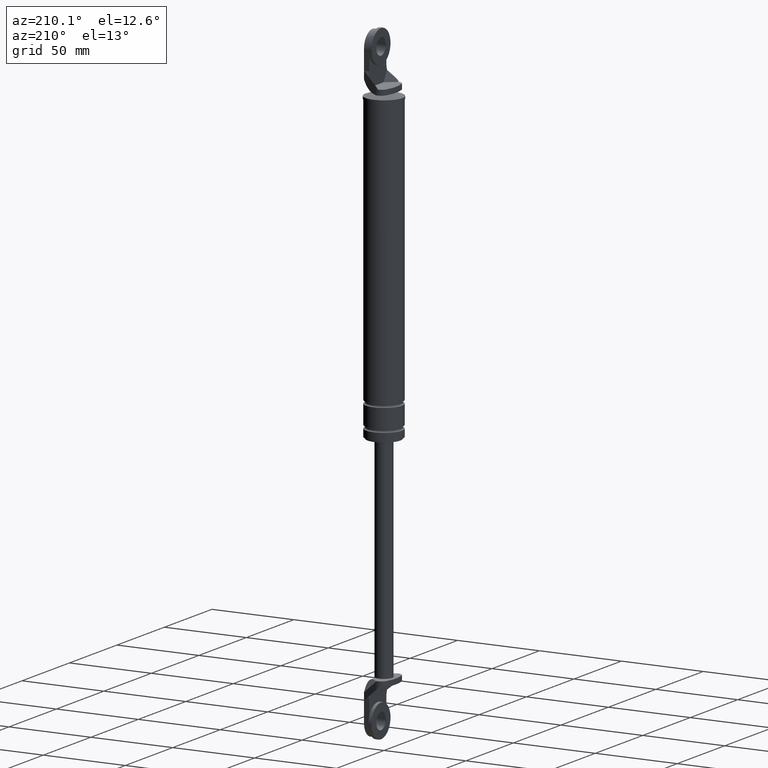
[diagram: clean part render]
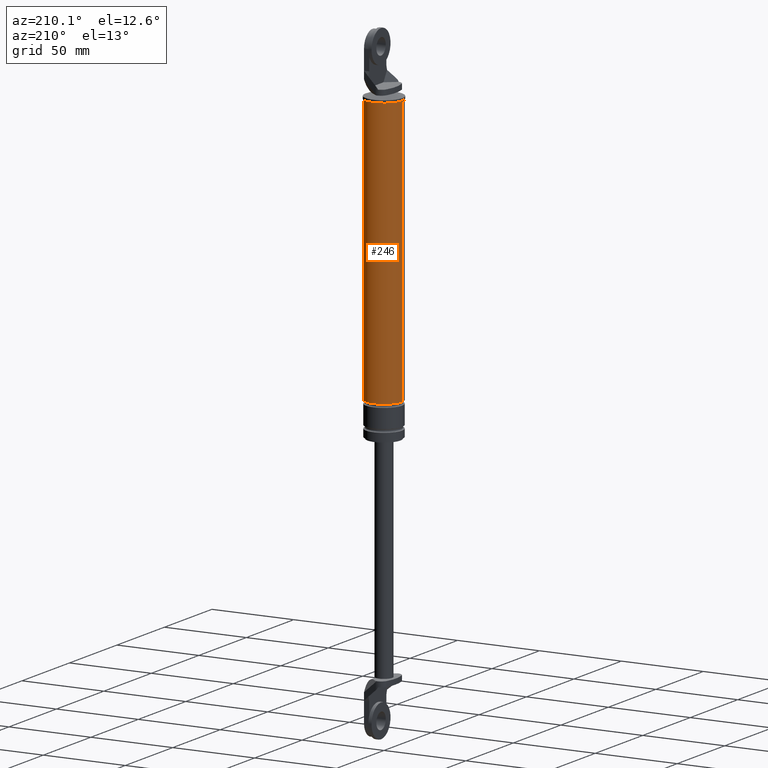
[diagram: same view with one face highlighted and labeled with its STEP entity id]
A machine part, auxiliary view. The second image highlights one B-rep face of the part: STEP entity #246.
In plain terms, the highlighted cylindrical surface (edge-blend (fillet) strip) has radius 11 mm, axis along (0, 0, 1).
Its self-contained STEP definition (entity closure, byte-faithful):
#246=ADVANCED_FACE('',(#717),#716,.T.);
#716=CYLINDRICAL_SURFACE('',#1430,1.10000000000E+001);
#717=FACE_OUTER_BOUND('',#1431,.T.);
#1427=CARTESIAN_POINT('',(0.00000000000E+000,3.58204186421E-014,0.00000000000E+000));
#1428=DIRECTION('',(-0.00000000000E+000,-0.00000000000E+000,1.00000000000E+000));
#1429=DIRECTION('',(1.00000000000E+000,-0.00000000000E+000,-0.00000000000E+000));
#1430=AXIS2_PLACEMENT_3D('',#1427,#1428,#1429);
#1431=EDGE_LOOP('',(#1980,#1981,#1982,#1983));
#1980=ORIENTED_EDGE('',*,*,#2268,.T.);
#1981=ORIENTED_EDGE('',*,*,#2287,.F.);
#1982=ORIENTED_EDGE('',*,*,#2288,.F.);
#1983=ORIENTED_EDGE('',*,*,#2289,.T.);
#2268=EDGE_CURVE('',#2967,#2966,#2974,.T.);
#2287=EDGE_CURVE('',#3096,#2966,#3097,.T.);
#2288=EDGE_CURVE('',#3103,#3096,#3104,.T.);
#2289=EDGE_CURVE('',#3103,#2967,#3110,.T.);
#2966=VERTEX_POINT('',#4077);
#2967=VERTEX_POINT('',#4078);
#2974=CIRCLE('',#4086,1.10000000000E+001);
#3096=VERTEX_POINT('',#4155);
#3097=(BOUNDED_CURVE() B_SPLINE_CURVE(1,(#4156,#4157),.UNSPECIFIED.,.F.,.F.) B_SPLINE_CURVE_WITH_KNOTS((2,2),(5.46448087319E-002,9.45355191245E-001),.UNSPECIFIED.) CURVE() GEOMETRIC_REPRESENTATION_ITEM() RATIONAL_B_SPLINE_CURVE((1.00000000000E+000,1.00000000000E+000)) REPRESENTATION_ITEM('') );
#3103=VERTEX_POINT('',#4158);
#3104=CIRCLE('',#4162,1.10000000000E+001);
#3110=(BOUNDED_CURVE() B_SPLINE_CURVE(1,(#4163,#4164),.UNSPECIFIED.,.F.,.F.) B_SPLINE_CURVE_WITH_KNOTS((2,2),(5.46448087432E-002,9.45355191257E-001),.UNSPECIFIED.) CURVE() GEOMETRIC_REPRESENTATION_ITEM() RATIONAL_B_SPLINE_CURVE((7.50000000000E-001,7.50000000000E-001)) REPRESENTATION_ITEM('') );
#4077=CARTESIAN_POINT('',(1.10000000000E+001,3.61192557345E-014,8.49999850000E+001));
#4078=CARTESIAN_POINT('',(-1.10000000000E+001,3.58204186421E-014,8.49999850000E+001));
#4083=CARTESIAN_POINT('',(0.00000000000E+000,3.58204186421E-014,8.49999850000E+001));
#4084=DIRECTION('',(-0.00000000000E+000,0.00000000000E+000,-1.00000000000E+000));
#4085=DIRECTION('',(-1.00000000000E+000,-1.22460635382E-016,0.00000000000E+000));
#4086=AXIS2_PLACEMENT_3D('',#4083,#4084,#4085);
#4155=CARTESIAN_POINT('',(1.10000000000E+001,3.61192557345E-014,-7.80000150000E+001));
#4156=CARTESIAN_POINT('',(1.10000000000E+001,3.58204186421E-014,-7.80000150021E+001));
#4157=CARTESIAN_POINT('',(1.10000000000E+001,3.58204186421E-014,8.49999849979E+001));
#4158=CARTESIAN_POINT('',(-1.10000000000E+001,3.58204186421E-014,-7.80000150000E+001));
#4159=CARTESIAN_POINT('',(0.00000000000E+000,3.58204186421E-014,-7.80000150000E+001));
#4160=DIRECTION('',(-0.00000000000E+000,0.00000000000E+000,-1.00000000000E+000));
#4161=DIRECTION('',(-1.00000000000E+000,-1.22460635382E-016,0.00000000000E+000));
#4162=AXIS2_PLACEMENT_3D('',#4159,#4160,#4161);
#4163=CARTESIAN_POINT('',(-1.10000000000E+001,3.55271367880E-014,-7.80000150000E+001));
#4164=CARTESIAN_POINT('',(-1.10000000000E+001,3.55271367880E-014,8.49999850000E+001));